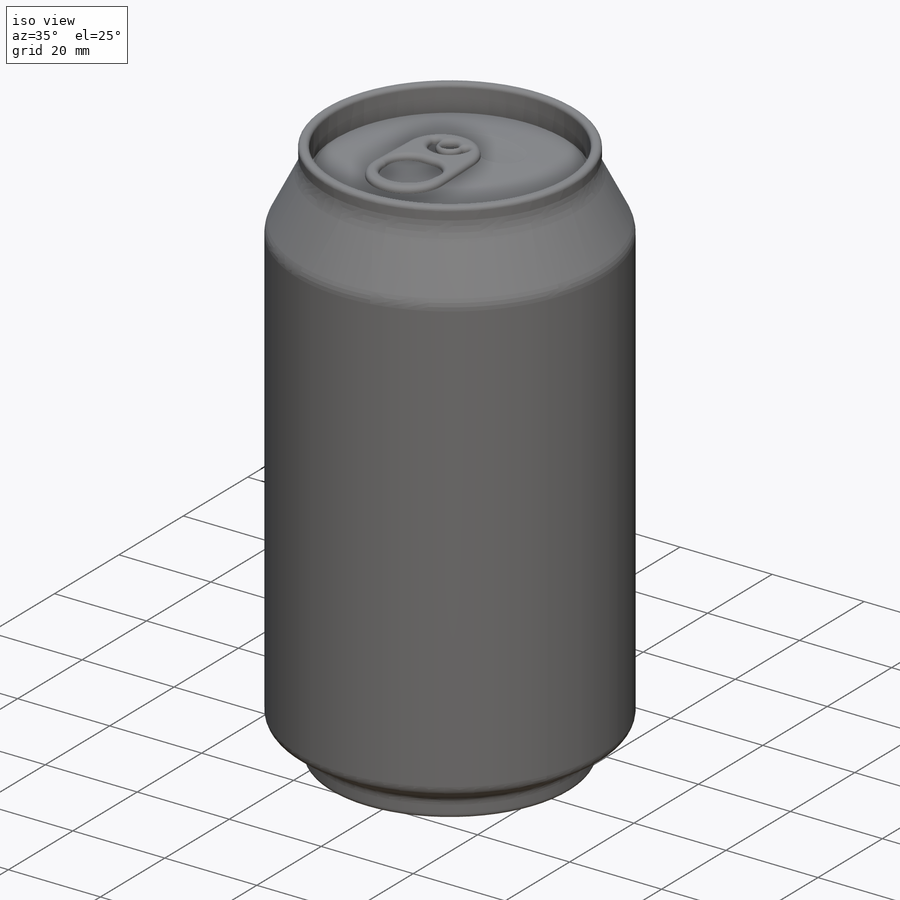
[diagram: iso view]
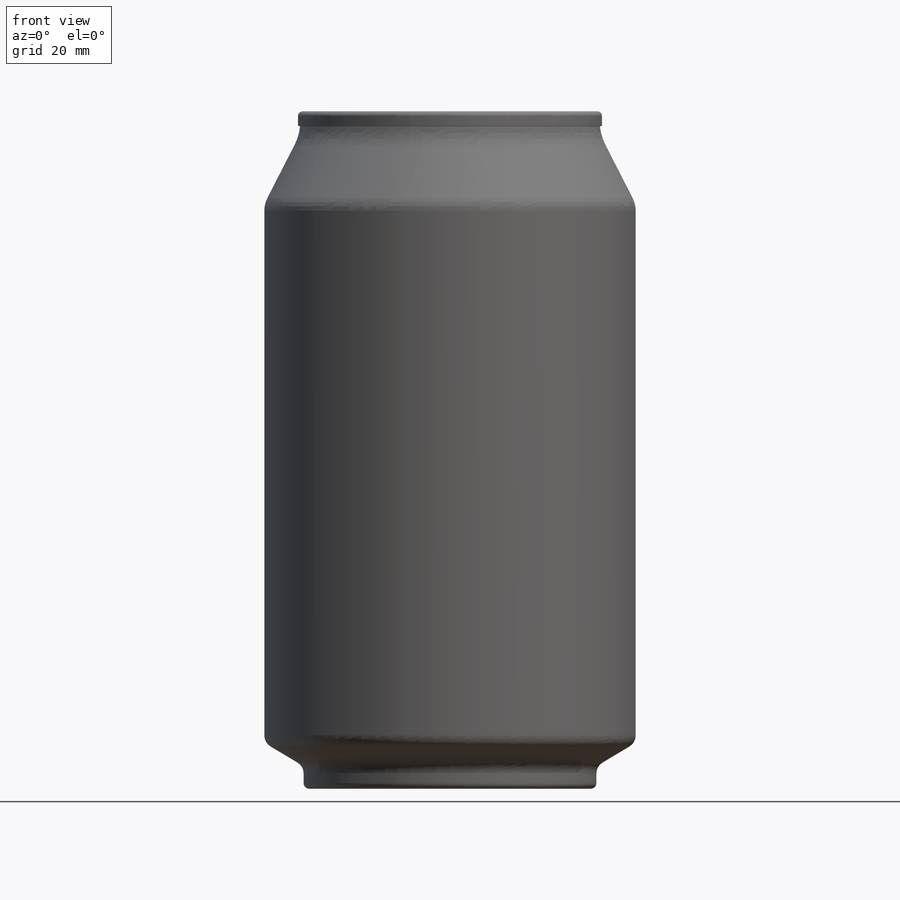
[diagram: front view]
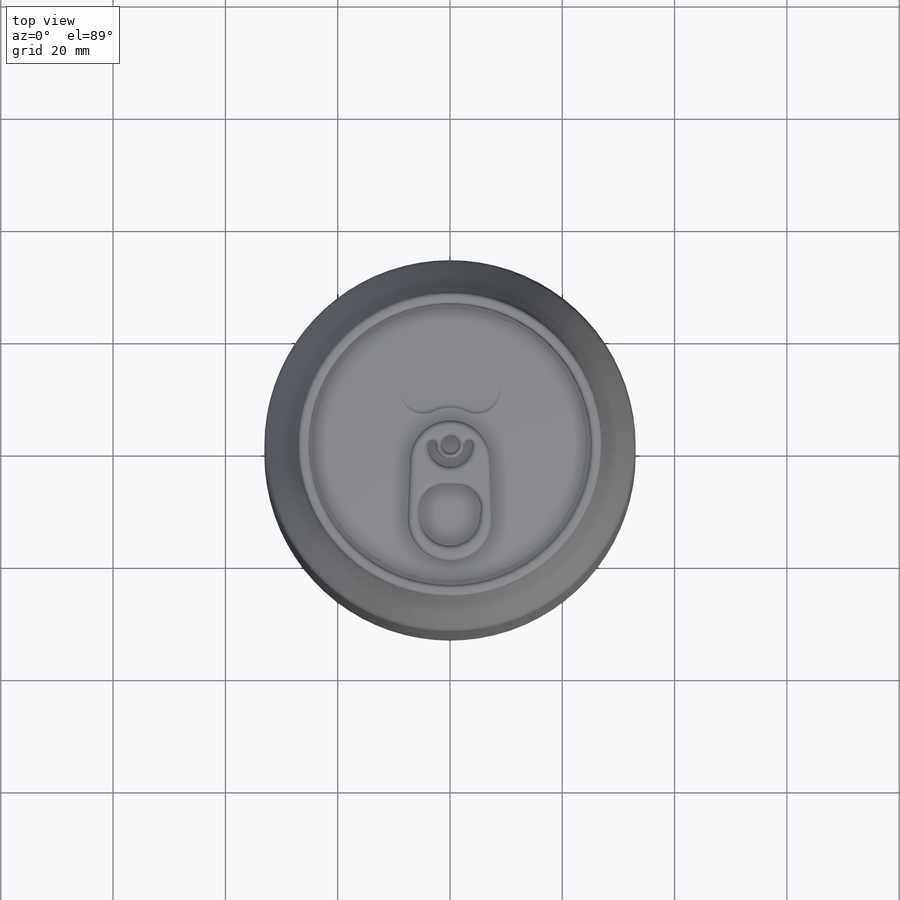
[diagram: top view]
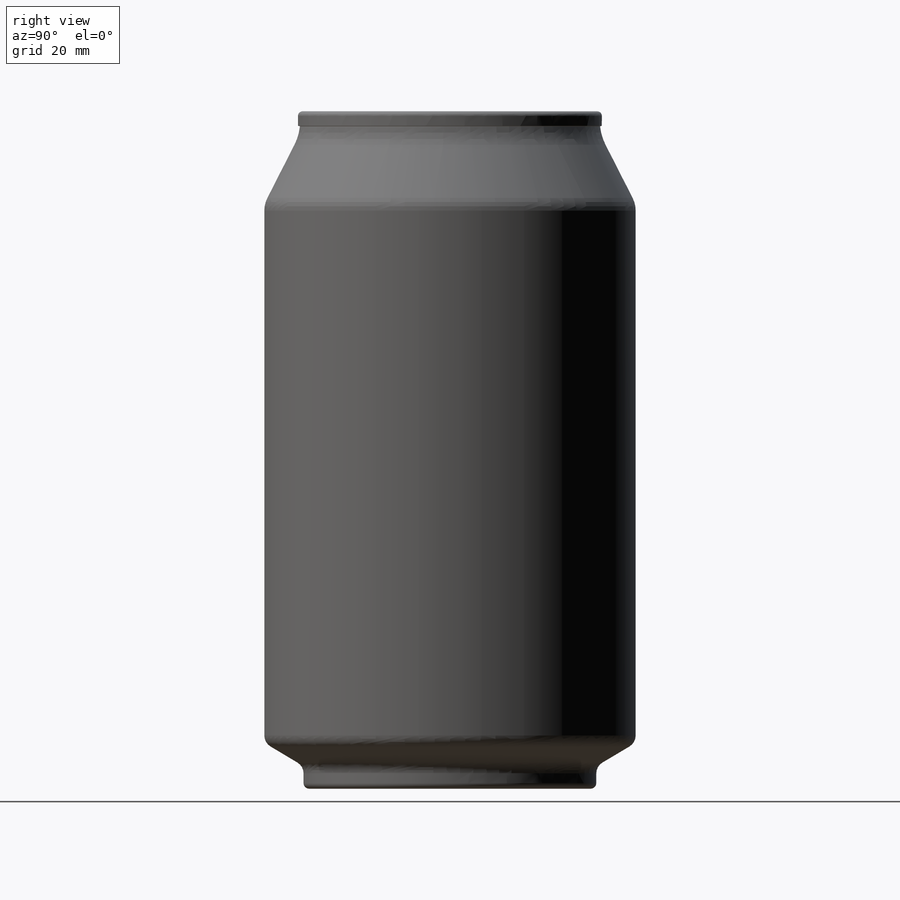
[diagram: right view]
SOLIDWORKS PART (.sldprt)
format: sldprt  version: not decoded by parser v0  size: 842,752 bytes
history: native  units: mm
features: extrude x9, sketch x5, fillet x5, cut_revolve x2, material x1, plane x1, cut_extrude x1, shell x1 (+13 scaffold rows collapsed)
feature tree (38):
  scaffold x13  (default folders/planes/origin — collapsed)
  material  "1060 Alloy"
  sketch  "Sketch2"  dims[D1=66.14mm]
  extrude  "Extrude1"  Depth=120.65mm
  sketch  "Sketch3"  dims[c1.D7=~9.421969mm c1.D11=~9.421969mm c1.D12=~289.749685mm c1.D1=16.5mm c1.D2=2.6mm c1.D3=3.81mm c1.D4=2.0mm c1.D5=23.495mm c1.D6=0.9mm c2.D7=6.35mm c2.D8=~58.926672mm c2.D9=54.16mm c2.D5=4.31mm c3.D8=5.9mm c3.D10=0.36mm c3.D3=0.36mm c4.D3=100.0deg c4.D13=~0.579311mm c4.D14=~9.940507mm c5.D14=27.0deg]
  cut_revolve  "Cut-Revolve1"  Angle=360deg
  fillet  "Fillet1"  Radius=5mm
  fillet  "Fillet2"  Radius=0.813923mm
  sketch  "Sketch4"  dims[c1.D4=~2.298368mm c1.D5=~2.209926mm c1.D7=~2.298368mm c1.D1=9.5mm c1.D2=2.54mm c1.D3=6.985mm c1.D6=~5.583929mm c1.D8=~2.867198mm c2.D8=59.0deg c3.D8=33.5mm c3.D9=23.545mm c3.D10=11.2mm c3.D11=2.75mm]
  cut_revolve  "Cut-Revolve2"  Angle=360deg
  fillet  "Fillet3"  Radius=1mm
  plane  "Plane1"  Offset=56mm
  sketch  "Sketch7"  dims[c1.D1=~12.519843mm c1.D3=~16.769843mm c1.D4=4.25mm c2.D1=8.5mm c2.D4=~12.519843mm c2.D3=10.0mm c3.D4=18.0mm c3.D2=~62.715793deg c3.D1=0.0mm]
  cut_extrude  "MOUTH CUT"  Depth=0.4mm
  sketch  "Sketch6"  dims[c1.D8=8.89mm c1.D6=3.09mm c1.D1=~8.728195mm c1.D3=~9.728195mm c1.D5=~1.551539mm c1.D7=~7.981307mm c2.D8=~4.676028mm c2.D7=3.09mm c2.D10=~9.878463mm c2.D9=50.16mm c2.D2=~4.28539mm c2.D4=~5.368201mm c2.D3=~7.504919mm c2.D14=~2.052711mm c2.D15=~2.750166mm c2.D12=3.745mm c3.D14=~5.368201mm c3.D1=13.335mm c3.D2=7.62mm c3.D3=16.51mm c3.D4=8.89mm c3.D5=16.51mm c3.D6=6.985mm c3.D7=6.35mm c3.D9=11.43mm c4.D1=6.96mm c4.D4=11.5mm c4.D5=~8.330742mm c4.D7=~3.048648mm c5.D5=11.0mm c5.D2=~2.42922mm c5.D1=~8.628153mm c5.D7=~0.398959mm c5.D8=~0.357783mm c5.D9=~3.440065mm c6.D8=14.25mm c6.D9=~15.959382mm c6.D7=2.7mm c7.D9=~7.138487mm c7.D10=~26.327053mm c7.D11=~24.411325mm c8.D10=25.0mm c8.D11=~24.411325mm c8.D12=~24.411325mm c9.D11=15.0mm c9.D12=~8.986049mm c9.D13=~18.509021mm c9.D2=~1.939604mm c9.D3=2.69mm c9.D14=10.0mm c9.D15=1.3mm c10.D12=1.0mm c10.D14=~1.787936mm c10.D2=40.0deg c10.D3=2.6mm c11.D12=2.2mm c11.D13=1.45mm]
  extrude  "Extrude2"  Depth=1.27mm
  fillet  "Fillet8"  Radius=1mm
  extrude  "PW2_UID_val"  [1 undecoded]
  extrude  "pw2 (2)"  [1 undecoded]
  extrude  "PW2_UID_val"  [1 undecoded]
  extrude  "pw2 (3)"  [1 undecoded]
  extrude  "PW2_UID_val"  [1 undecoded]
  extrude  "pw2 (4)"  [1 undecoded]
  extrude  "PW2_UID_val"  [1 undecoded]
  fillet  "Fillet9"  Radius=1mm
  shell  "Shell12"  Thickness=0.23mm
decode coverage: 16 of 23 modeling features carry decoded parameters
note: ~ marks probable driven/reference dimensions
note: 7 parameter values undecoded
summary: no parameter record found for 7 features
note: suppression state not decoded; provenance and decode notes live in map.json
